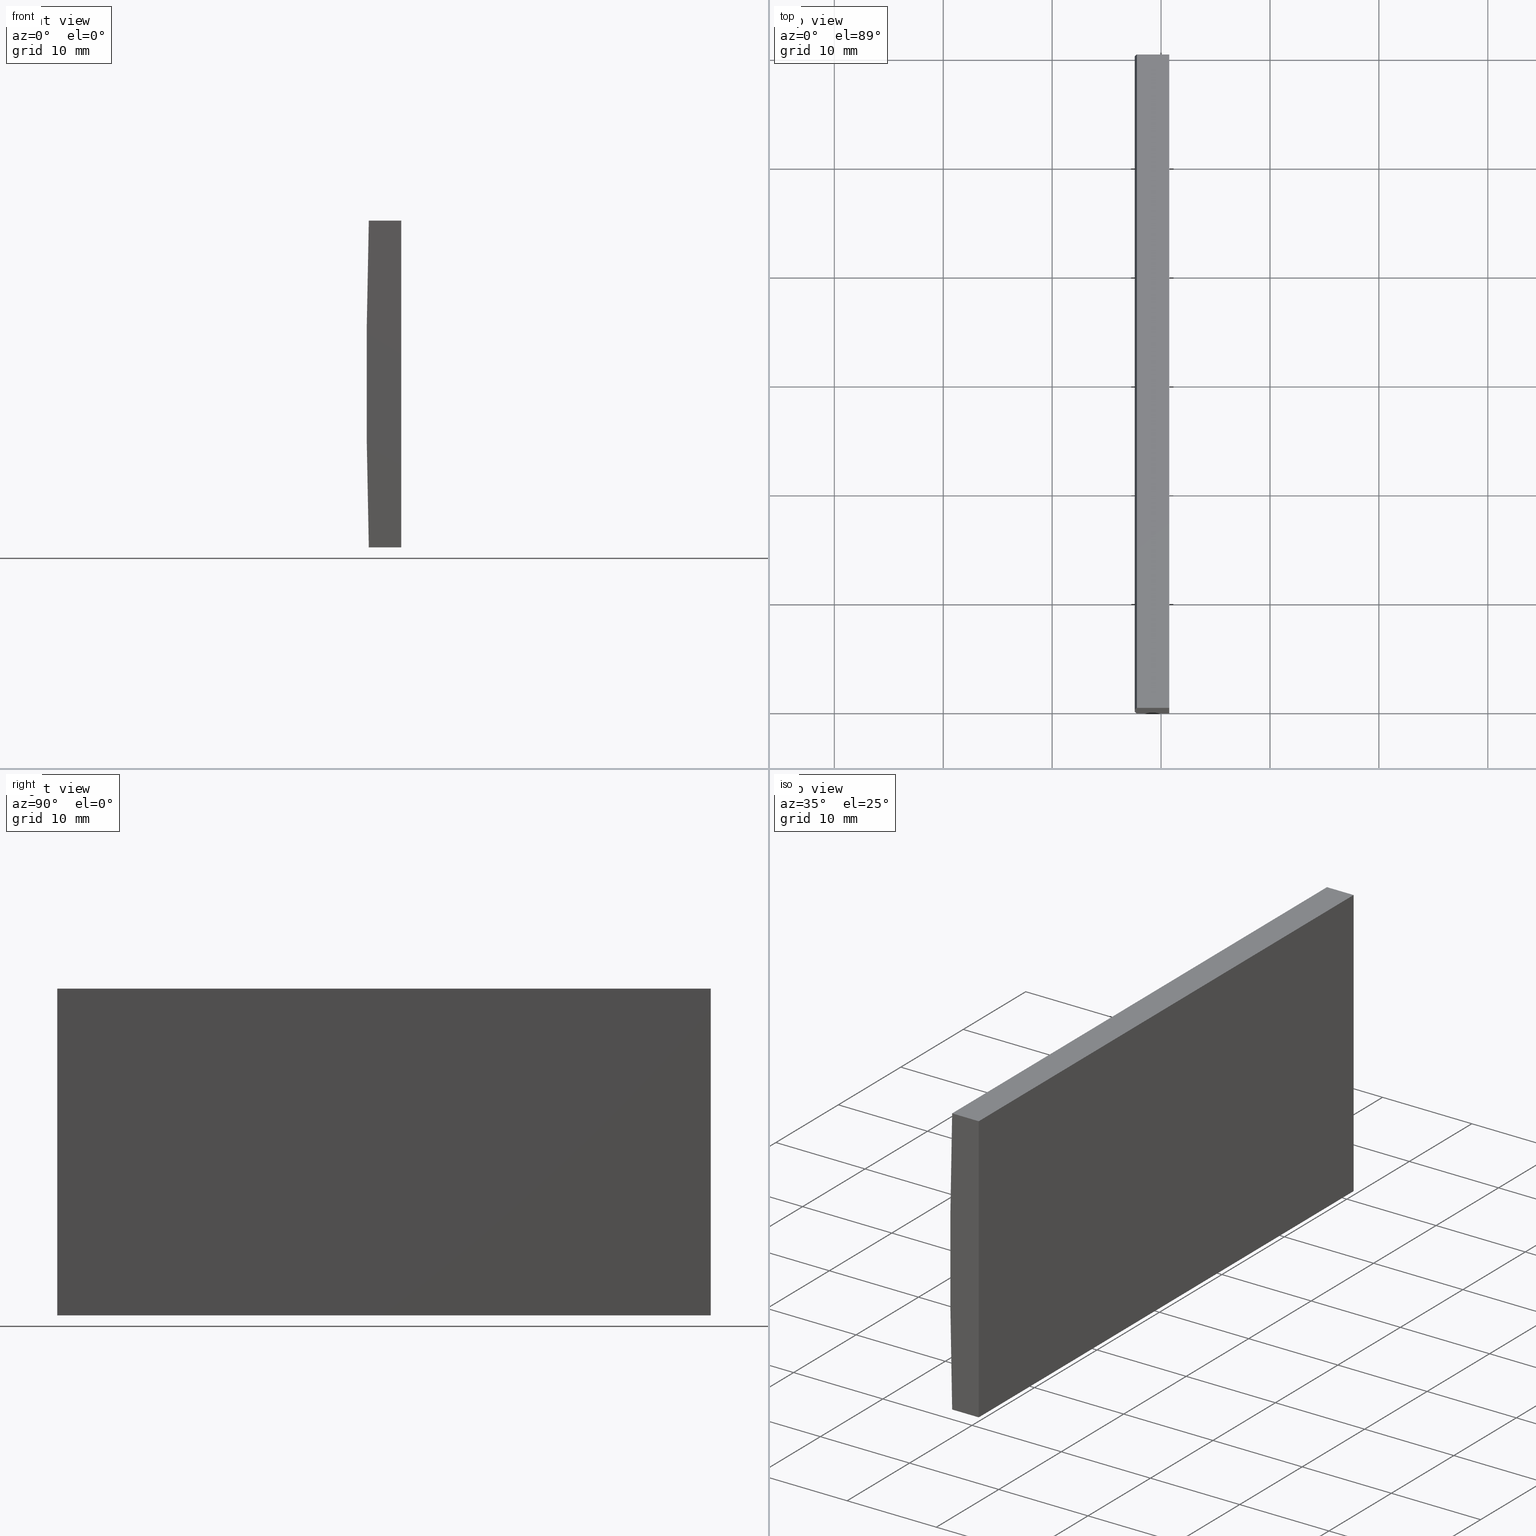
[diagram: canonical four-view strip — front | top / right | iso, engineering-drawing reading convention]
A machine part, canonical four-view strip (front | top / right | iso — engineering-drawing reading convention). The complete STEP part file that produces these views, byte-faithful:
ISO-10303-21;
HEADER;
FILE_DESCRIPTION (( 'STEP AP214' ),
    '1' );
FILE_NAME ('155065.STEP',
    '2019-06-18T08:37:45',
    ( 'user' ),
    ( '΢���й�' ),
    'SwSTEP 2.0',
    'SolidWorks 2016',
    '' );
FILE_SCHEMA (( 'AUTOMOTIVE_DESIGN' ));
ENDSEC;

DATA;
#1 = ORIENTED_EDGE ( 'NONE', *, *, #23, .T. ) ;
#2 = CARTESIAN_POINT ( 'NONE',  ( 4.355204334851265500, 60.00000000000000000, 4.286263797015675000E-017 ) ) ;
#3 = ORIENTED_EDGE ( 'NONE', *, *, #31, .F. ) ;
#4 = EDGE_LOOP ( 'NONE', ( #118, #126, #37, #168 ) ) ;
#5 = DIRECTION ( 'NONE',  ( 0.0000000000000000000, 0.0000000000000000000, 1.000000000000000000 ) ) ;
#6 = VERTEX_POINT ( 'NONE', #192 ) ;
#7 =( LENGTH_UNIT ( ) NAMED_UNIT ( * ) SI_UNIT ( .MILLI., .METRE. ) );
#8 = CARTESIAN_POINT ( 'NONE',  ( -509.2447956651486700, 60.00000000000000000, -14.99999999999984000 ) ) ;
#9 = PLANE ( 'NONE',  #11 ) ;
#10 =( NAMED_UNIT ( * ) PLANE_ANGLE_UNIT ( ) SI_UNIT ( $, .RADIAN. ) );
#11 = AXIS2_PLACEMENT_3D ( 'NONE', #121, #96, #142 ) ;
#12 = VERTEX_POINT ( 'NONE', #189 ) ;
#13 = VECTOR ( 'NONE', #200, 1000.000000000000000 ) ;
#14 = PRODUCT_DEFINITION ( 'δ֪', '', #62, #36 ) ;
#15 = SHAPE_DEFINITION_REPRESENTATION ( #43, #124 ) ;
#16 = CARTESIAN_POINT ( 'NONE',  ( -512.2270640406708300, 0.0000000000000000000, -15.00000000000000000 ) ) ;
#17 = ORIENTED_EDGE ( 'NONE', *, *, #185, .T. ) ;
#18 =( NAMED_UNIT ( * ) SI_UNIT ( $, .STERADIAN. ) SOLID_ANGLE_UNIT ( ) );
#19 = EDGE_CURVE ( 'NONE', #6, #139, #46, .T. ) ;
#20 = ORIENTED_EDGE ( 'NONE', *, *, #19, .T. ) ;
#21 = DIRECTION ( 'NONE',  ( 1.000000000000000000, 0.0000000000000000000, 0.0000000000000000000 ) ) ;
#22 = VECTOR ( 'NONE', #69, 1000.000000000000000 ) ;
#23 = EDGE_CURVE ( 'NONE', #148, #154, #77, .T. ) ;
#24 = DIRECTION ( 'NONE',  ( 0.0000000000000000000, 0.0000000000000000000, -1.000000000000000000 ) ) ;
#25 = APPLICATION_PROTOCOL_DEFINITION ( 'draft international standard', 'automotive_design', 1998, #41 ) ;
#26 = SURFACE_SIDE_STYLE ('',( #27 ) ) ;
#27 = SURFACE_STYLE_FILL_AREA ( #120 ) ;
#28 = SURFACE_STYLE_USAGE ( .BOTH. , #26 ) ;
#29 = UNCERTAINTY_MEASURE_WITH_UNIT (LENGTH_MEASURE( 1.000000000000000100E-005 ), #55, 'distance_accuracy_value', 'NONE');
#30 = CARTESIAN_POINT ( 'NONE',  ( -509.2447956651486700, 60.00000000000000000, -14.99999999999984000 ) ) ;
#31 = EDGE_CURVE ( 'NONE', #154, #6, #204, .T. ) ;
#32 = CARTESIAN_POINT ( 'NONE',  ( -512.2270640406708300, 60.00000000000000000, -15.00000000000000000 ) ) ;
#33 = DIRECTION ( 'NONE',  ( 0.0000000000000000000, 0.0000000000000000000, 1.000000000000000000 ) ) ;
#34 = CARTESIAN_POINT ( 'NONE',  ( -512.2270640406708300, 60.00000000000000000, 15.00000000000000000 ) ) ;
#35 =( GEOMETRIC_REPRESENTATION_CONTEXT ( 3 ) GLOBAL_UNCERTAINTY_ASSIGNED_CONTEXT ( ( #49 ) ) GLOBAL_UNIT_ASSIGNED_CONTEXT ( ( #166, #86, #198 ) ) REPRESENTATION_CONTEXT ( 'NONE', 'WORKASPACE' ) );
#36 = PRODUCT_DEFINITION_CONTEXT ( 'detailed design', #131, 'design' ) ;
#37 = ORIENTED_EDGE ( 'NONE', *, *, #113, .F. ) ;
#38 = VECTOR ( 'NONE', #68, 1000.000000000000000 ) ;
#39 = DIRECTION ( 'NONE',  ( 0.0000000000000000000, -0.0000000000000000000, 1.000000000000000000 ) ) ;
#40 = AXIS2_PLACEMENT_3D ( 'NONE', #50, #144, #39 ) ;
#41 = APPLICATION_CONTEXT ( 'automotive_design' ) ;
#42 = FILL_AREA_STYLE_COLOUR ( '', #181 ) ;
#43 = PRODUCT_DEFINITION_SHAPE ( 'NONE', 'NONE',  #14 ) ;
#44 = FILL_AREA_STYLE ('',( #42 ) ) ;
#45 = EDGE_CURVE ( 'NONE', #87, #132, #161, .T. ) ;
#46 = LINE ( 'NONE', #82, #112 ) ;
#47 = SURFACE_SIDE_STYLE ('',( #101 ) ) ;
#48 = ORIENTED_EDGE ( 'NONE', *, *, #111, .F. ) ;
#49 = UNCERTAINTY_MEASURE_WITH_UNIT (LENGTH_MEASURE( 1.000000000000000100E-005 ), #166, 'distance_accuracy_value', 'NONE');
#50 = CARTESIAN_POINT ( 'NONE',  ( 4.355204334851265500, 60.00000000000000000, 4.286263797015675000E-017 ) ) ;
#51 = SURFACE_STYLE_USAGE ( .BOTH. , #47 ) ;
#52 = ORIENTED_EDGE ( 'NONE', *, *, #111, .T. ) ;
#53 = VERTEX_POINT ( 'NONE', #183 ) ;
#54 = PRESENTATION_STYLE_ASSIGNMENT (( #51 ) ) ;
#55 =( LENGTH_UNIT ( ) NAMED_UNIT ( * ) SI_UNIT ( .MILLI., .METRE. ) );
#56 = EDGE_CURVE ( 'NONE', #12, #154, #88, .T. ) ;
#57 = EDGE_LOOP ( 'NONE', ( #105, #81, #102, #1 ) ) ;
#58 = DIRECTION ( 'NONE',  ( -1.000000000000000000, 0.0000000000000000000, 0.0000000000000000000 ) ) ;
#59 = STYLED_ITEM ( 'NONE', ( #54 ), #124 ) ;
#60 = ORIENTED_EDGE ( 'NONE', *, *, #72, .T. ) ;
#61 = EDGE_CURVE ( 'NONE', #87, #6, #153, .T. ) ;
#62 = PRODUCT_DEFINITION_FORMATION_WITH_SPECIFIED_SOURCE ( '�κ�', '', #199, .NOT_KNOWN. ) ;
#63 = ADVANCED_FACE ( 'NONE', ( #128 ), #76, .F. ) ;
#64 = CYLINDRICAL_SURFACE ( 'NONE', #146, 516.7999999999999500 ) ;
#65 =( NAMED_UNIT ( * ) PLANE_ANGLE_UNIT ( ) SI_UNIT ( $, .RADIAN. ) );
#66 = ADVANCED_FACE ( 'NONE', ( #147 ), #159, .F. ) ;
#67 =( NAMED_UNIT ( * ) SI_UNIT ( $, .STERADIAN. ) SOLID_ANGLE_UNIT ( ) );
#68 = DIRECTION ( 'NONE',  ( -0.0000000000000000000, -1.000000000000000000, -0.0000000000000000000 ) ) ;
#69 = DIRECTION ( 'NONE',  ( -1.000000000000000000, -0.0000000000000000000, -5.351448618768996800E-014 ) ) ;
#70 = FACE_OUTER_BOUND ( 'NONE', #4, .T. ) ;
#71 = DIRECTION ( 'NONE',  ( 0.0000000000000000000, 0.0000000000000000000, 1.000000000000000000 ) ) ;
#72 = EDGE_CURVE ( 'NONE', #148, #87, #145, .T. ) ;
#73 = FACE_OUTER_BOUND ( 'NONE', #57, .T. ) ;
#74 = MECHANICAL_DESIGN_GEOMETRIC_PRESENTATION_REPRESENTATION (  '', ( #79 ), #35 ) ;
#75 = ORIENTED_EDGE ( 'NONE', *, *, #185, .F. ) ;
#76 = PLANE ( 'NONE',  #98 ) ;
#77 = LINE ( 'NONE', #174, #38 ) ;
#78 = COLOUR_RGB ( '',1.000000000000000000, 1.000000000000000000, 1.000000000000000000 ) ;
#79 = STYLED_ITEM ( 'NONE', ( #107 ), #195 ) ;
#80 = PRESENTATION_LAYER_ASSIGNMENT (  '', '', ( #59 ) ) ;
#81 = ORIENTED_EDGE ( 'NONE', *, *, #61, .F. ) ;
#82 = CARTESIAN_POINT ( 'NONE',  ( -512.2270640406708300, 0.0000000000000000000, 15.00000000000000000 ) ) ;
#83 = EDGE_LOOP ( 'NONE', ( #60, #176, #140, #164 ) ) ;
#84 = CARTESIAN_POINT ( 'NONE',  ( -509.2447956651486700, 0.0000000000000000000, 15.00000000000000000 ) ) ;
#85 = VECTOR ( 'NONE', #115, 1000.000000000000000 ) ;
#86 =( NAMED_UNIT ( * ) PLANE_ANGLE_UNIT ( ) SI_UNIT ( $, .RADIAN. ) );
#87 = VERTEX_POINT ( 'NONE', #191 ) ;
#88 = LINE ( 'NONE', #179, #22 ) ;
#89 = ORIENTED_EDGE ( 'NONE', *, *, #45, .F. ) ;
#90 = CLOSED_SHELL ( 'NONE', ( #182, #197, #63, #108, #93, #66 ) ) ;
#91 = VECTOR ( 'NONE', #188, 1000.000000000000000 ) ;
#92 = LINE ( 'NONE', #114, #13 ) ;
#93 = ADVANCED_FACE ( 'NONE', ( #156 ), #170, .T. ) ;
#94 = CARTESIAN_POINT ( 'NONE',  ( 0.0000000000000000000, 0.0000000000000000000, 0.0000000000000000000 ) ) ;
#95 = CARTESIAN_POINT ( 'NONE',  ( -509.2447956651486700, 60.00000000000000000, 15.00000000000000000 ) ) ;
#96 = DIRECTION ( 'NONE',  ( -5.351448618768996800E-014, 0.0000000000000000000, 1.000000000000000000 ) ) ;
#97 = DIRECTION ( 'NONE',  ( -0.0000000000000000000, -0.0000000000000000000, -1.000000000000000000 ) ) ;
#98 = AXIS2_PLACEMENT_3D ( 'NONE', #30, #58, #5 ) ;
#99 = CARTESIAN_POINT ( 'NONE',  ( 4.355204334851265500, 0.0000000000000000000, 4.286263797015675000E-017 ) ) ;
#100 = ORIENTED_EDGE ( 'NONE', *, *, #61, .T. ) ;
#101 = SURFACE_STYLE_FILL_AREA ( #44 ) ;
#102 = ORIENTED_EDGE ( 'NONE', *, *, #72, .F. ) ;
#103 = ORIENTED_EDGE ( 'NONE', *, *, #19, .F. ) ;
#104 = AXIS2_PLACEMENT_3D ( 'NONE', #2, #163, #33 ) ;
#105 = ORIENTED_EDGE ( 'NONE', *, *, #31, .T. ) ;
#106 = UNCERTAINTY_MEASURE_WITH_UNIT (LENGTH_MEASURE( 1.000000000000000100E-005 ), #7, 'distance_accuracy_value', 'NONE');
#107 = PRESENTATION_STYLE_ASSIGNMENT (( #28 ) ) ;
#108 = ADVANCED_FACE ( 'NONE', ( #70 ), #9, .F. ) ;
#109 = DIRECTION ( 'NONE',  ( 0.0000000000000000000, 1.000000000000000000, 0.0000000000000000000 ) ) ;
#110 = DIRECTION ( 'NONE',  ( -1.000000000000000000, 0.0000000000000000000, -0.0000000000000000000 ) ) ;
#111 = EDGE_CURVE ( 'NONE', #139, #12, #92, .T. ) ;
#112 = VECTOR ( 'NONE', #155, 1000.000000000000000 ) ;
#113 = EDGE_CURVE ( 'NONE', #53, #148, #150, .T. ) ;
#114 = CARTESIAN_POINT ( 'NONE',  ( -509.2447956651486700, 0.0000000000000000000, -14.99999999999984000 ) ) ;
#115 = DIRECTION ( 'NONE',  ( -1.000000000000000000, -0.0000000000000000000, -5.351448618768996800E-014 ) ) ;
#116 = CARTESIAN_POINT ( 'NONE',  ( -509.2447956651486700, 60.00000000000000000, 15.00000000000000000 ) ) ;
#117 = VECTOR ( 'NONE', #21, 1000.000000000000000 ) ;
#118 = ORIENTED_EDGE ( 'NONE', *, *, #56, .T. ) ;
#119 = ORIENTED_EDGE ( 'NONE', *, *, #165, .F. ) ;
#120 = FILL_AREA_STYLE ('',( #157 ) ) ;
#121 = CARTESIAN_POINT ( 'NONE',  ( -512.2270640406708300, 60.00000000000000000, -15.00000000000000000 ) ) ;
#122 = PRESENTATION_LAYER_ASSIGNMENT (  '', '', ( #79 ) ) ;
#123 = CARTESIAN_POINT ( 'NONE',  ( 4.355204334851265500, 60.00000000000000000, 4.286263797015675000E-017 ) ) ;
#124 = ADVANCED_BREP_SHAPE_REPRESENTATION ( '155065', ( #195, #203 ), #187 ) ;
#125 = PRODUCT_CONTEXT ( 'NONE', #41, 'mechanical' ) ;
#126 = ORIENTED_EDGE ( 'NONE', *, *, #23, .F. ) ;
#127 = LINE ( 'NONE', #95, #134 ) ;
#128 = FACE_OUTER_BOUND ( 'NONE', #152, .T. ) ;
#129 = EDGE_LOOP ( 'NONE', ( #20, #75, #89, #100 ) ) ;
#130 = EDGE_CURVE ( 'NONE', #53, #12, #202, .T. ) ;
#131 = APPLICATION_CONTEXT ( 'automotive_design' ) ;
#132 = VERTEX_POINT ( 'NONE', #116 ) ;
#133 = DIRECTION ( 'NONE',  ( 1.000000000000000000, 0.0000000000000000000, 0.0000000000000000000 ) ) ;
#134 = VECTOR ( 'NONE', #167, 1000.000000000000000 ) ;
#135 = APPLICATION_PROTOCOL_DEFINITION ( 'draft international standard', 'automotive_design', 1998, #131 ) ;
#136 = PRODUCT_RELATED_PRODUCT_CATEGORY ( 'part', '', ( #199 ) ) ;
#137 = FACE_OUTER_BOUND ( 'NONE', #129, .T. ) ;
#138 = LINE ( 'NONE', #169, #193 ) ;
#139 = VERTEX_POINT ( 'NONE', #84 ) ;
#140 = ORIENTED_EDGE ( 'NONE', *, *, #165, .T. ) ;
#141 = DIRECTION ( 'NONE',  ( -0.0000000000000000000, -1.000000000000000000, -0.0000000000000000000 ) ) ;
#142 = DIRECTION ( 'NONE',  ( 1.000000000000000000, 0.0000000000000000000, 5.351448618768996800E-014 ) ) ;
#143 = ORIENTED_EDGE ( 'NONE', *, *, #130, .F. ) ;
#144 = DIRECTION ( 'NONE',  ( 0.0000000000000000000, 1.000000000000000000, 0.0000000000000000000 ) ) ;
#145 = CIRCLE ( 'NONE', #104, 516.7999999999999500 ) ;
#146 = AXIS2_PLACEMENT_3D ( 'NONE', #123, #196, #24 ) ;
#147 = FACE_OUTER_BOUND ( 'NONE', #160, .T. ) ;
#148 = VERTEX_POINT ( 'NONE', #175 ) ;
#149 = DIRECTION ( 'NONE',  ( 0.0000000000000000000, -0.0000000000000000000, 1.000000000000000000 ) ) ;
#150 = LINE ( 'NONE', #32, #85 ) ;
#151 = AXIS2_PLACEMENT_3D ( 'NONE', #34, #186, #110 ) ;
#152 = EDGE_LOOP ( 'NONE', ( #52, #143, #119, #17 ) ) ;
#153 = LINE ( 'NONE', #184, #91 ) ;
#154 = VERTEX_POINT ( 'NONE', #16 ) ;
#155 = DIRECTION ( 'NONE',  ( 1.000000000000000000, 0.0000000000000000000, 0.0000000000000000000 ) ) ;
#156 = FACE_OUTER_BOUND ( 'NONE', #83, .T. ) ;
#157 = FILL_AREA_STYLE_COLOUR ( '', #78 ) ;
#158 = ORIENTED_EDGE ( 'NONE', *, *, #56, .F. ) ;
#159 = PLANE ( 'NONE',  #194 ) ;
#160 = EDGE_LOOP ( 'NONE', ( #3, #158, #48, #103 ) ) ;
#161 = LINE ( 'NONE', #162, #117 ) ;
#162 = CARTESIAN_POINT ( 'NONE',  ( -512.2270640406708300, 60.00000000000000000, 15.00000000000000000 ) ) ;
#163 = DIRECTION ( 'NONE',  ( 0.0000000000000000000, 1.000000000000000000, 0.0000000000000000000 ) ) ;
#164 = ORIENTED_EDGE ( 'NONE', *, *, #113, .T. ) ;
#165 = EDGE_CURVE ( 'NONE', #132, #53, #138, .T. ) ;
#166 =( LENGTH_UNIT ( ) NAMED_UNIT ( * ) SI_UNIT ( .MILLI., .METRE. ) );
#167 = DIRECTION ( 'NONE',  ( -0.0000000000000000000, -1.000000000000000000, -0.0000000000000000000 ) ) ;
#168 = ORIENTED_EDGE ( 'NONE', *, *, #130, .T. ) ;
#169 = CARTESIAN_POINT ( 'NONE',  ( -509.2447956651486700, 60.00000000000000000, -14.99999999999984000 ) ) ;
#170 = PLANE ( 'NONE',  #40 ) ;
#171 = CARTESIAN_POINT ( 'NONE',  ( 4.355204334851265500, 0.0000000000000000000, 4.286263797015675000E-017 ) ) ;
#172 = DIRECTION ( 'NONE',  ( 0.0000000000000000000, 1.000000000000000000, 0.0000000000000000000 ) ) ;
#173 = DIRECTION ( 'NONE',  ( 0.0000000000000000000, 0.0000000000000000000, 1.000000000000000000 ) ) ;
#174 = CARTESIAN_POINT ( 'NONE',  ( -512.2270640406708300, 60.00000000000000000, -15.00000000000000000 ) ) ;
#175 = CARTESIAN_POINT ( 'NONE',  ( -512.2270640406708300, 60.00000000000000000, -15.00000000000000000 ) ) ;
#176 = ORIENTED_EDGE ( 'NONE', *, *, #45, .T. ) ;
#177 = PLANE ( 'NONE',  #151 ) ;
#178 = MECHANICAL_DESIGN_GEOMETRIC_PRESENTATION_REPRESENTATION (  '', ( #59 ), #190 ) ;
#179 = CARTESIAN_POINT ( 'NONE',  ( -512.2270640406708300, 0.0000000000000000000, -15.00000000000000000 ) ) ;
#180 = VECTOR ( 'NONE', #141, 1000.000000000000000 ) ;
#181 = COLOUR_RGB ( '',1.000000000000000000, 1.000000000000000000, 1.000000000000000000 ) ;
#182 = ADVANCED_FACE ( 'NONE', ( #73 ), #64, .T. ) ;
#183 = CARTESIAN_POINT ( 'NONE',  ( -509.2447956651486700, 60.00000000000000000, -14.99999999999984000 ) ) ;
#184 = CARTESIAN_POINT ( 'NONE',  ( -512.2270640406708300, 60.00000000000000000, 15.00000000000000000 ) ) ;
#185 = EDGE_CURVE ( 'NONE', #132, #139, #127, .T. ) ;
#186 = DIRECTION ( 'NONE',  ( 0.0000000000000000000, 0.0000000000000000000, -1.000000000000000000 ) ) ;
#187 =( GEOMETRIC_REPRESENTATION_CONTEXT ( 3 ) GLOBAL_UNCERTAINTY_ASSIGNED_CONTEXT ( ( #106 ) ) GLOBAL_UNIT_ASSIGNED_CONTEXT ( ( #7, #10, #18 ) ) REPRESENTATION_CONTEXT ( 'NONE', 'WORKASPACE' ) );
#188 = DIRECTION ( 'NONE',  ( -0.0000000000000000000, -1.000000000000000000, -0.0000000000000000000 ) ) ;
#189 = CARTESIAN_POINT ( 'NONE',  ( -509.2447956651486700, 0.0000000000000000000, -14.99999999999984000 ) ) ;
#190 =( GEOMETRIC_REPRESENTATION_CONTEXT ( 3 ) GLOBAL_UNCERTAINTY_ASSIGNED_CONTEXT ( ( #29 ) ) GLOBAL_UNIT_ASSIGNED_CONTEXT ( ( #55, #65, #67 ) ) REPRESENTATION_CONTEXT ( 'NONE', 'WORKASPACE' ) );
#191 = CARTESIAN_POINT ( 'NONE',  ( -512.2270640406708300, 60.00000000000000000, 15.00000000000000000 ) ) ;
#192 = CARTESIAN_POINT ( 'NONE',  ( -512.2270640406708300, 0.0000000000000000000, 15.00000000000000000 ) ) ;
#193 = VECTOR ( 'NONE', #97, 1000.000000000000000 ) ;
#194 = AXIS2_PLACEMENT_3D ( 'NONE', #99, #109, #149 ) ;
#195 = MANIFOLD_SOLID_BREP ( '͹̨-����1', #90 ) ;
#196 = DIRECTION ( 'NONE',  ( -0.0000000000000000000, -1.000000000000000000, -0.0000000000000000000 ) ) ;
#197 = ADVANCED_FACE ( 'NONE', ( #137 ), #177, .F. ) ;
#198 =( NAMED_UNIT ( * ) SI_UNIT ( $, .STERADIAN. ) SOLID_ANGLE_UNIT ( ) );
#199 = PRODUCT ( '155065', '155065', '', ( #125 ) ) ;
#200 = DIRECTION ( 'NONE',  ( -0.0000000000000000000, -0.0000000000000000000, -1.000000000000000000 ) ) ;
#201 = AXIS2_PLACEMENT_3D ( 'NONE', #171, #172, #173 ) ;
#202 = LINE ( 'NONE', #8, #180 ) ;
#203 = AXIS2_PLACEMENT_3D ( 'NONE', #94, #71, #133 ) ;
#204 = CIRCLE ( 'NONE', #201, 516.7999999999999500 ) ;
ENDSEC;
END-ISO-10303-21;
